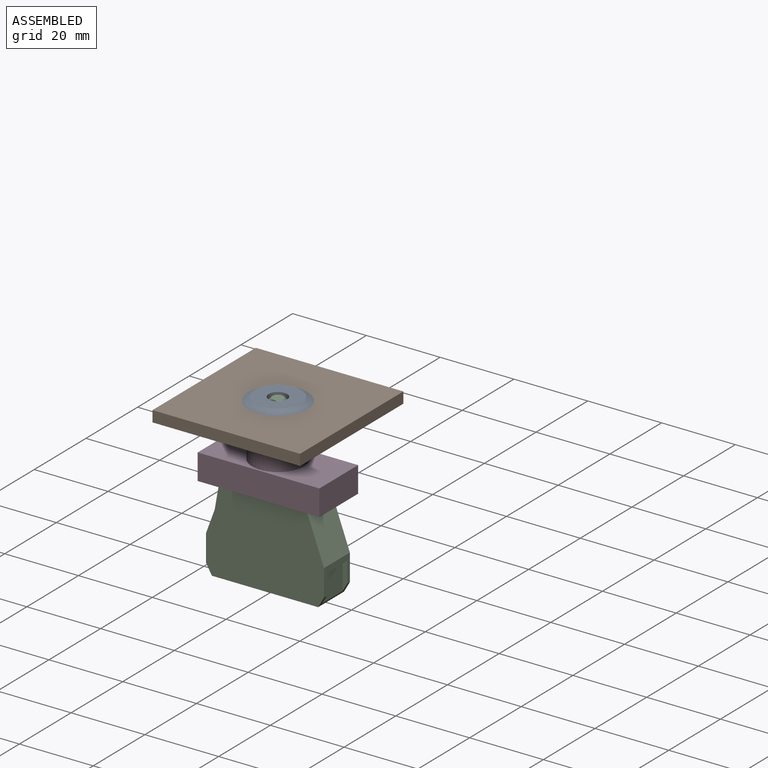
[diagram: assembled view]
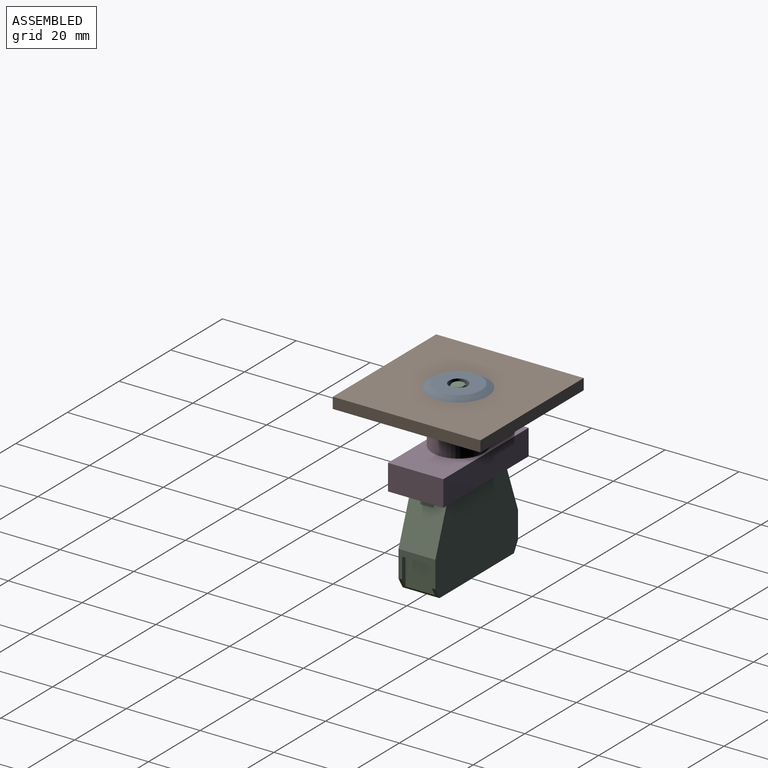
[diagram: assembled view, second angle]
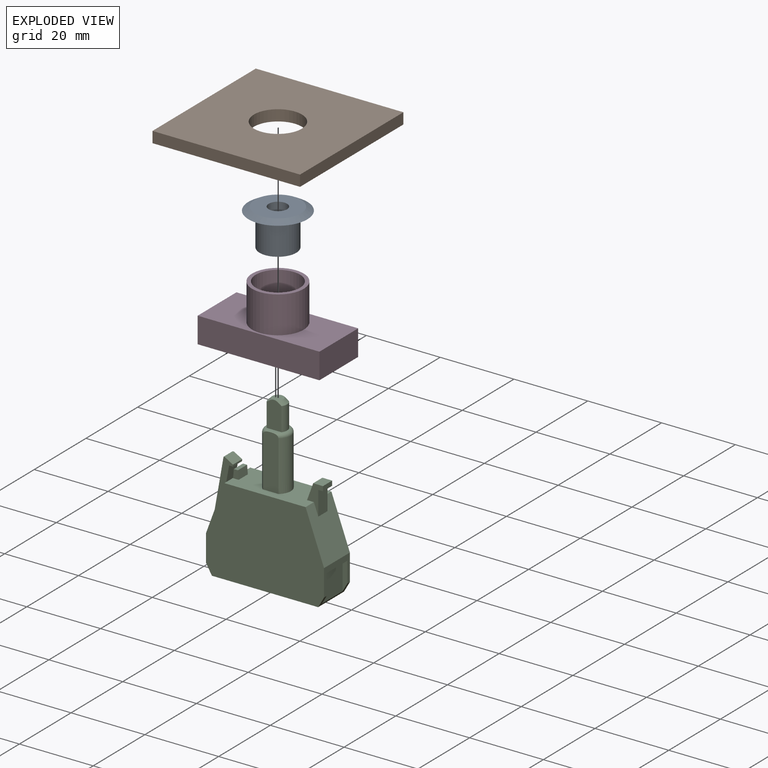
[diagram: exploded view]
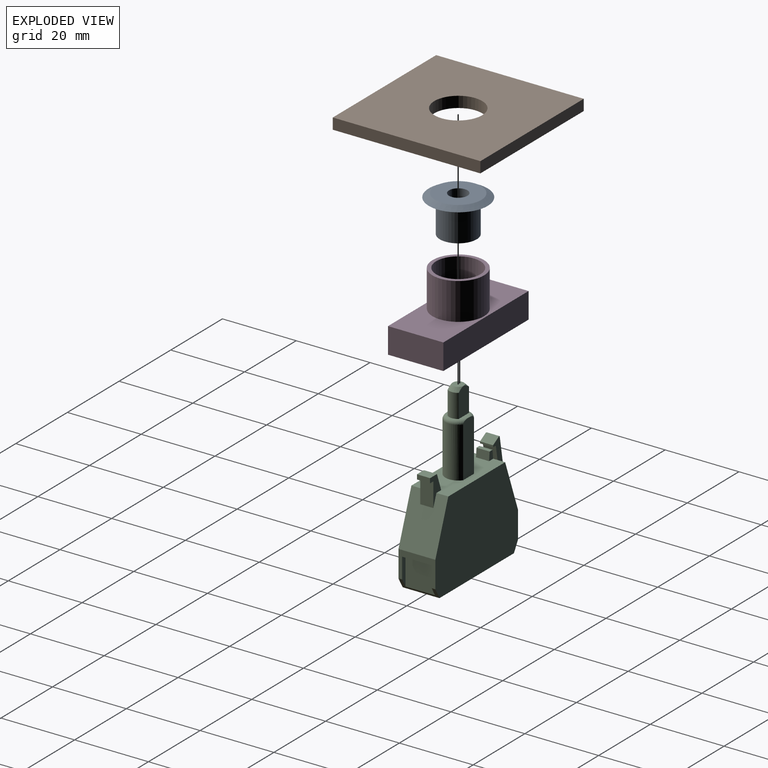
[diagram: exploded view, second angle]
ASSEMBLY  parts=4 mates=3
PART A: 8 faces, bbox 16x16x10 mm
  f0: cylinder r=2.5mm len=5mm, axis (0,0,1), area 78.5mm2, adj f1,f7
  f1: plane 8x8mm, normal (0,0,-1), area 30.6mm2, adj f0,f2
  f2: cylinder r=4mm len=8mm, axis (0,0,1), area 125.7mm2, adj f1,f3
  f3: plane 10x10mm, normal (0,0,-1), area 28.3mm2, adj f2,f4
  f4: cylinder r=5mm len=10mm, axis (0,0,1), area 282.7mm2, adj f3,f5
  f5: plane 16x16mm, normal (0,0,-1), area 122.5mm2, adj f4,f6
  f6: cone r=8mm half-angle=60deg, axis (0,0,-1), area 89.6mm2, adj f5,f7
  f7: plane 12.54x12.54mm, normal (0,0,1), area 103.8mm2, adj f0,f6
PART B: 7 faces, bbox 40x40x3 mm
  f0: plane 40x3mm, normal (0,1,0), area 120mm2, adj f1,f4,f5,f6
  f1: plane 40x3mm, normal (-1,0,0), area 120mm2, adj f0,f2,f5,f6
  f2: plane 40x3mm, normal (0,-1,0), area 120mm2, adj f1,f4,f5,f6
  f3: cylinder r=6.5mm len=13mm, axis (0,0,-1), area 122.5mm2, adj f5,f6
  f4: plane 40x3mm, normal (1,0,0), area 120mm2, adj f0,f2,f5,f6
  f5: plane 40x40mm, normal (0,0,1), area 1467.3mm2, adj f0,f1,f2,f3,f4
  f6: plane 40x40mm, normal (0,0,-1), area 1467.3mm2, adj f0,f1,f2,f3,f4
PART C: 54 faces, bbox 46.1x10.5x32.5 mm
  f0: plane 5.07x5.07mm, normal (1,0,0), area 19.6mm2, adj f8
  f1: plane 5.07x5.07mm, normal (1,0,0), area 19.6mm2, adj f9
  f2: plane 3.56x1.05mm, normal (1,0,0), area 3.7mm2, adj f3,f18,f19,f20
  f3: plane 3.56x0.47mm, normal (0,0,1), area 1.7mm2, adj f2,f4,f18,f20
  f4: plane 3.56x2.2mm, normal (-0.87,0,0.5), area 9mm2, adj f3,f5,f18,f20
  f5: plane 3.56x0.34mm, normal (-1,0,0), area 1.2mm2, adj f4,f6,f18,f20
  f6: plane 14.22x3.56mm, normal (-0.17,0,-0.98), area 51.4mm2, adj f5,f7,f18,f20
  f7: plane 3.56x2.54mm, normal (0,0,-1), area 9mm2, adj f6,f18,f20,f21
  f8: cylinder r=2.5mm len=5mm, axis (1,0,0), area 19.9mm2, adj f0,f24
  f9: cylinder r=2.5mm len=5mm, axis (1,0,0), area 19.9mm2, adj f1,f24
  f10: plane 8x7.78mm, normal (0,0,1), area 62.2mm2, adj f11,f12,f13,f25
  f11: plane 7.78x1.27mm, normal (0,-1,0), area 8.5mm2, adj f10,f13,f25,f26
  f12: plane 7.78x1.27mm, normal (0,1,0), area 8.5mm2, adj f10,f13,f25,f26
  f13: plane 8x1.27mm, normal (1,0,0), area 10.1mm2, adj f10,f11,f12,f26
  f14: plane 3.56x1.12mm, normal (-1,0,0), area 4mm2, adj f28,f29,f30,f31
  f15: plane 3.56x2.65mm, normal (-1,0,0), area 9.4mm2, adj f16,f32,f33,f34
  f16: plane 3.56x1.27mm, normal (0,0,1), area 4.5mm2, adj f15,f17,f32,f34
  f17: plane 3.56x1.27mm, normal (1,0,0), area 4.5mm2, adj f16,f27,f32,f34
  f18: plane 17.14x5.05mm, normal (0,1,0), area 28.1mm2, adj f2,f3,f4,f5,f6,f7,f19,f21
  f19: plane 10.64x3.56mm, normal (0.17,0,0.98), area 38.4mm2, adj f2,f18,f20,f36
  f20: plane 17.14x5.05mm, normal (0,-1,0), area 28.1mm2, adj f2,f3,f4,f5,f6,f7,f19,f21
  f21: plane 3.56x0.38mm, normal (0.71,0,-0.71), area 1.9mm2, adj f7,f18,f20,f36
  f22: plane 10x7.22mm, normal (0,0,-1), area 72.2mm2, adj f23,f35,f36,f37
  f23: plane 10x2.77mm, normal (0.5,0,-0.87), area 32mm2, adj f22,f24,f35,f37
  f24: plane 28.8x10mm, normal (1,0,0), area 248.7mm2, adj f8,f9,f23,f25,f35,f37
  f25: plane 10x2.77mm, normal (0.5,0,0.87), area 11.7mm2, adj f10,f11,f12,f24,f26,f35,f37
  f26: plane 10x7.22mm, normal (0,0,1), area 27.5mm2, adj f11,f12,f13,f25,f35,f37,f38
  f27: plane 6.54x3.56mm, normal (0,0,1), area 23.3mm2, adj f17,f32,f34,f38
  f28: plane 3.56x2.29mm, normal (-0.09,0,-1), area 8.2mm2, adj f14,f29,f31,f39
  f29: plane 2.29x1.52mm, normal (0,1,0), area 3mm2, adj f14,f28,f30,f39
  f30: plane 3.56x2.29mm, normal (-0.09,0,1), area 8.2mm2, adj f14,f29,f31,f39
  f31: plane 2.29x1.52mm, normal (0,-1,0), area 3mm2, adj f14,f28,f30,f39
  f32: plane 7.81x4.32mm, normal (0,-1,0), area 13.7mm2, adj f15,f16,f17,f27,f33,f38,f39
  f33: plane 4.57x3.56mm, normal (-0.34,0,-0.94), area 17.3mm2, adj f15,f32,f34,f39
  f34: plane 7.81x4.32mm, normal (0,1,0), area 13.7mm2, adj f15,f16,f17,f27,f33,f38,f39
  f35: plane 32x23.6mm, normal (0,1,0), area 682.6mm2, adj f22,f23,f24,f25,f26,f36,f38,f39
  f36: plane 13.6x10mm, normal (-0.35,0,-0.94), area 126.9mm2, adj f18,f19,f20,f21,f22,f35,f37,f39
  f37: plane 32x23.6mm, normal (0,-1,0), area 682.6mm2, adj f22,f23,f24,f25,f26,f36,f38,f39
  f38: plane 13.6x10mm, normal (-0.35,0,0.94), area 132.7mm2, adj f26,f27,f32,f34,f35,f37,f39
  f39: plane 22.2x10.2mm, normal (-1,0,0), area 173.5mm2, adj f28,f29,f30,f31,f32,f33,f34,f35
  f40: plane 14.56x4.2mm, normal (0,-1,0), area 60.6mm2, adj f39,f41,f43,f45
  f41: cylinder r=3.5mm len=13.6mm, axis (-1,0,0), area 88.3mm2, adj f39,f40,f42,f45
  f42: plane 14.56x4.2mm, normal (0,1,0), area 60.6mm2, adj f39,f41,f43,f45
  f43: cylinder r=3.5mm len=13.6mm, axis (-1,0,0), area 88.3mm2, adj f39,f40,f42,f45
  f44: plane 4x1mm, normal (-1,0,0), area 2.8mm2, adj f45,f49
  f45: torus R=2.5mm, axis (-1,0,0), area 22.5mm2, adj f40,f41,f42,f43,f44,f46,f47,f50
  f46: cylinder r=2.5mm len=6.39mm, axis (-1,0,0), area 20.6mm2, adj f45,f48,f49,f51
  f47: plane 4x1mm, normal (-1,0,0), area 2.8mm2, adj f45,f51
  f48: cone r=2.5mm half-angle=45deg, axis (1,0,0), area 5.2mm2, adj f46,f49,f51,f52
  f49: plane 7.87x4.47mm, normal (0,-1,0), area 28.1mm2, adj f44,f46,f48,f50,f53
  f50: cylinder r=2.5mm len=6.39mm, axis (-1,0,0), area 20.6mm2, adj f45,f49,f51,f53
  f51: plane 7.87x4.47mm, normal (0,1,0), area 28.1mm2, adj f46,f47,f48,f50,f53
  f52: plane 3.06x3.05mm, normal (-1,0,0), area 7.1mm2, adj f48,f53
  f53: cone r=2.5mm half-angle=45deg, axis (1,0,0), area 5.2mm2, adj f49,f50,f51,f52
PART D: 34 faces, bbox 17x15x33 mm
  f0: plane 12x12mm, normal (-1,0,0), area 77.5mm2, adj f7,f8,f9,f10,f31
  f1: plane 15x7mm, normal (0,0,-1), area 105mm2, adj f2,f4,f5,f6
  f2: plane 33x15mm, normal (1,0,0), area 435mm2, adj f1,f3,f5,f6,f7,f8,f9,f10
  f3: plane 15x7mm, normal (0,0,1), area 105mm2, adj f2,f4,f5,f6
  f4: plane 33x15mm, normal (-1,0,0), area 341.1mm2, adj f1,f3,f5,f6,f32
  f5: plane 33x7mm, normal (0,-1,0), area 231mm2, adj f1,f2,f3,f4
  f6: plane 33x7mm, normal (0,1,0), area 231mm2, adj f1,f2,f3,f4
  f7: cylinder r=3.55mm len=7mm, axis (-1,0,0), area 46.3mm2, adj f0,f2,f8,f10
  f8: plane 7x4.23mm, normal (0,-1,0), area 29.6mm2, adj f0,f2,f7,f9
  f9: cylinder r=3.55mm len=7mm, axis (-1,0,0), area 46.3mm2, adj f0,f2,f8,f10
  f10: plane 7x4.23mm, normal (0,1,0), area 29.6mm2, adj f0,f2,f7,f9
  f11: plane 3.66x1.22mm, normal (1,0,0), area 4.4mm2, adj f12,f13,f14,f15
  f12: plane 3.66x2.34mm, normal (0.09,0,1), area 8.6mm2, adj f2,f11,f13,f15
  f13: plane 2.34x1.62mm, normal (0,-1,0), area 3.3mm2, adj f2,f11,f12,f14
  f14: plane 3.66x2.34mm, normal (0.09,0,-1), area 8.6mm2, adj f2,f11,f13,f15
  f15: plane 2.34x1.62mm, normal (0,1,0), area 3.3mm2, adj f2,f11,f12,f14
  f16: plane 3.66x0.4mm, normal (1,0,0), area 1.5mm2, adj f17,f20,f22,f23
  f17: plane 3.66x2.24mm, normal (0.87,0,-0.5), area 9.5mm2, adj f16,f18,f20,f22
  f18: plane 3.66x0.55mm, normal (0,0,-1), area 2mm2, adj f17,f19,f20,f22
  f19: plane 3.66x1.06mm, normal (-1,0,0), area 3.9mm2, adj f18,f20,f21,f22
  f20: plane 4.62x3.45mm, normal (0,1,0), area 9mm2, adj f2,f16,f17,f18,f19,f21,f23
  f21: plane 3.66x2.78mm, normal (-0.17,0,-0.98), area 10.3mm2, adj f2,f19,f20,f22
  f22: plane 4.62x3.45mm, normal (0,-1,0), area 9mm2, adj f2,f16,f17,f18,f19,f21,f23
  f23: plane 4.62x3.66mm, normal (0.17,0,0.98), area 17.2mm2, adj f2,f16,f20,f22
  f24: plane 3.66x1.27mm, normal (-1,0,0), area 4.6mm2, adj f25,f27,f28,f29
  f25: plane 3.66x1.37mm, normal (0,0,-1), area 5mm2, adj f24,f26,f27,f28
  f26: plane 3.66x2.74mm, normal (1,0,0), area 10mm2, adj f25,f27,f28,f30
  f27: plane 4.62x4.42mm, normal (0,-1,0), area 12.4mm2, adj f2,f24,f25,f26,f29,f30
  f28: plane 4.62x4.42mm, normal (0,1,0), area 12.4mm2, adj f2,f24,f25,f26,f29,f30
  f29: plane 3.66x3.25mm, normal (0,0,-1), area 11.9mm2, adj f2,f24,f27,f28
  f30: plane 4.62x3.66mm, normal (0.34,0,0.94), area 18mm2, adj f2,f26,f27,f28
  f31: cylinder r=6mm len=12mm, axis (1,0,0), area 377mm2, adj f0,f33
  f32: cylinder r=7mm len=14mm, axis (1,0,0), area 439.8mm2, adj f4,f33
  f33: plane 14x14mm, normal (-1,0,0), area 40.8mm2, adj f31,f32
PLACE A t=(0.06,0,1.45)mm
PLACE B t=(0.06,0,-1.55)mm fixed
PLACE C rot(axis=(0,1,0),90deg) t=(0.06,0,-19.75)mm
PLACE D rot(axis=(0,1,0),90deg) t=(0.06,0,-19.75)mm
MATE planar D.f2 <-> C.f39  axis (0,0,-1) through (9.15,-1.83,-19.75)mm
MATE cylindrical D.f7 <-> C.f46  axis (0,0,-1) through (0.06,0,-7.75)mm
MATE revolute A.f0 <-> B.f3  axis (0,0,-1) through (0.06,0,1.45)mm
